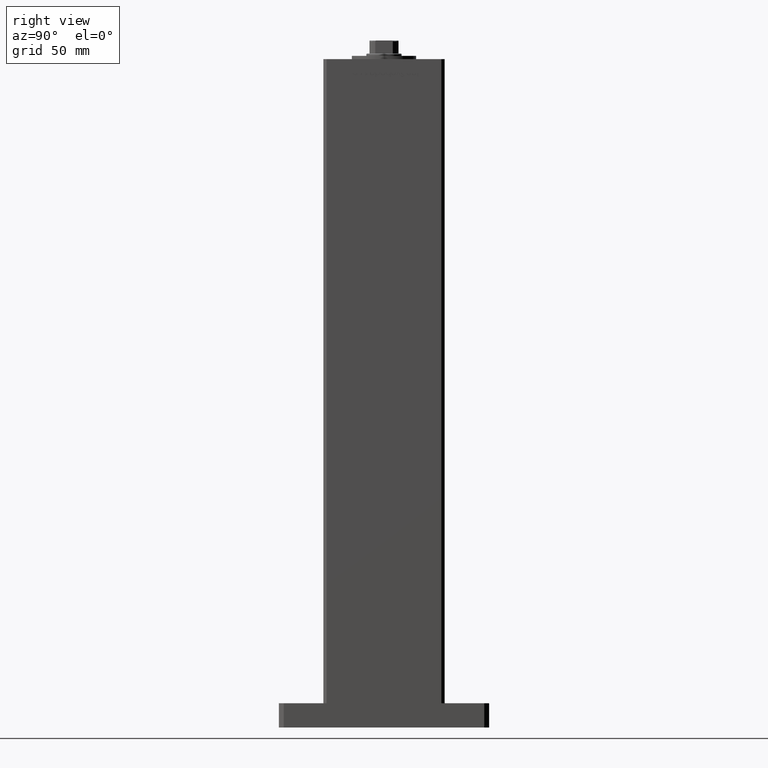
[diagram: clean part render]
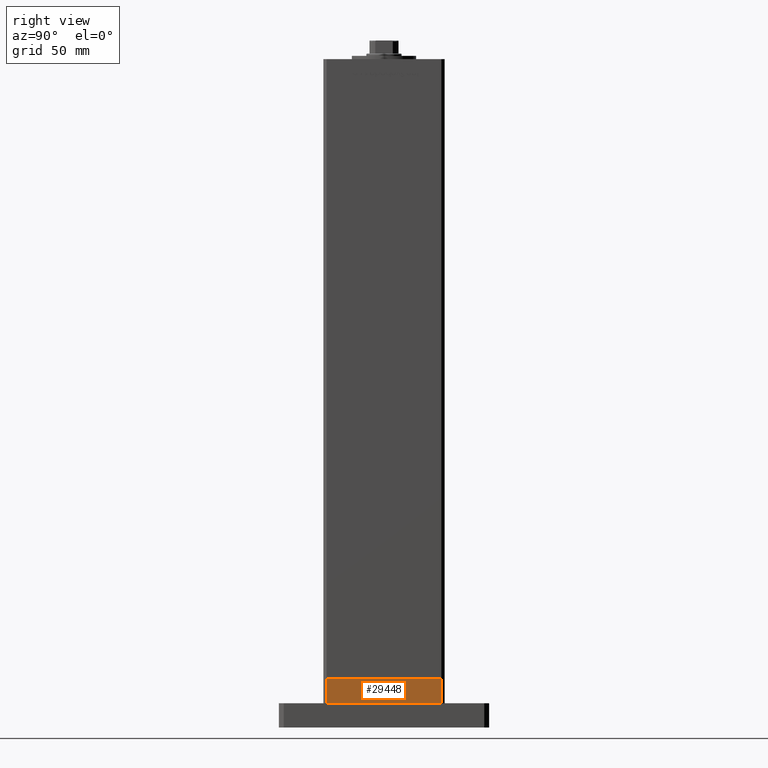
[diagram: same view with one face highlighted and labeled with its STEP entity id]
A machine part, right view. The second image highlights one B-rep face of the part: STEP entity #29448.
In plain terms, the highlighted planar face has unit normal (1, 0, 0).
Its self-contained STEP definition (entity closure, byte-faithful):
#3461 = DIRECTION ( 'NONE',  ( 0.000000000000000000, 0.000000000000000000, 1.000000000000000000 ) ) ;
#8209 = PLANE ( 'NONE',  #33339 ) ;
#8467 = DIRECTION ( 'NONE',  ( 9.773090005503140331E-17, -1.000000000000000000, 0.000000000000000000 ) ) ;
#9500 = VERTEX_POINT ( 'NONE', #29711 ) ;
#10301 = ORIENTED_EDGE ( 'NONE', *, *, #35342, .F. ) ;
#10823 = VERTEX_POINT ( 'NONE', #52097 ) ;
#11497 = LINE ( 'NONE', #44388, #27951 ) ;
#12709 = VERTEX_POINT ( 'NONE', #23651 ) ;
#13930 = LINE ( 'NONE', #21531, #18063 ) ;
#15290 = DIRECTION ( 'NONE',  ( 0.000000000000000000, 0.000000000000000000, 1.000000000000000000 ) ) ;
#18063 = VECTOR ( 'NONE', #46829, 1000.000000000000000 ) ;
#18228 = LINE ( 'NONE', #22836, #34918 ) ;
#21531 = CARTESIAN_POINT ( 'NONE',  ( -42.50000000000000711, 35.49999999999997158, 0.000000000000000000 ) ) ;
#22836 = CARTESIAN_POINT ( 'NONE',  ( -42.50000000000000711, 35.49999999999997158, -15.00000000000000000 ) ) ;
#23343 = EDGE_CURVE ( 'NONE', #12709, #10823, #18228, .T. ) ;
#23651 = CARTESIAN_POINT ( 'NONE',  ( -42.50000000000000711, 35.49999999999997158, -15.00000000000000000 ) ) ;
#25721 = CARTESIAN_POINT ( 'NONE',  ( -42.50000000000000000, -35.50000000000000711, 0.000000000000000000 ) ) ;
#27951 = VECTOR ( 'NONE', #15290, 1000.000000000000000 ) ;
#28133 = VECTOR ( 'NONE', #3461, 1000.000000000000000 ) ;
#28928 = EDGE_CURVE ( 'NONE', #12709, #9500, #30651, .T. ) ;
#29108 = CARTESIAN_POINT ( 'NONE',  ( -42.50000000000000711, 35.49999999999997158, -15.00000000000000000 ) ) ;
#29448 = ADVANCED_FACE ( 'NONE', ( #32668 ), #8209, .T. ) ;
#29711 = CARTESIAN_POINT ( 'NONE',  ( -42.50000000000000711, 35.49999999999997158, 0.000000000000000000 ) ) ;
#30651 = LINE ( 'NONE', #48856, #28133 ) ;
#32224 = EDGE_LOOP ( 'NONE', ( #10301, #52553, #49666, #38914 ) ) ;
#32668 = FACE_OUTER_BOUND ( 'NONE', #32224, .T. ) ;
#33339 = AXIS2_PLACEMENT_3D ( 'NONE', #29108, #45973, #8467 ) ;
#34918 = VECTOR ( 'NONE', #35069, 1000.000000000000000 ) ;
#35069 = DIRECTION ( 'NONE',  ( 9.773090005503140331E-17, -1.000000000000000000, 0.000000000000000000 ) ) ;
#35342 = EDGE_CURVE ( 'NONE', #9500, #53080, #13930, .T. ) ;
#38914 = ORIENTED_EDGE ( 'NONE', *, *, #51525, .T. ) ;
#44388 = CARTESIAN_POINT ( 'NONE',  ( -42.50000000000000000, -35.50000000000000711, -15.00000000000000000 ) ) ;
#45973 = DIRECTION ( 'NONE',  ( -1.000000000000000000, -9.773090005503140331E-17, 0.000000000000000000 ) ) ;
#46829 = DIRECTION ( 'NONE',  ( 9.773090005503140331E-17, -1.000000000000000000, 0.000000000000000000 ) ) ;
#48856 = CARTESIAN_POINT ( 'NONE',  ( -42.50000000000000711, 35.49999999999997158, -15.00000000000000000 ) ) ;
#49666 = ORIENTED_EDGE ( 'NONE', *, *, #23343, .T. ) ;
#51525 = EDGE_CURVE ( 'NONE', #10823, #53080, #11497, .T. ) ;
#52097 = CARTESIAN_POINT ( 'NONE',  ( -42.50000000000000000, -35.50000000000000711, -15.00000000000000000 ) ) ;
#52553 = ORIENTED_EDGE ( 'NONE', *, *, #28928, .F. ) ;
#53080 = VERTEX_POINT ( 'NONE', #25721 ) ;